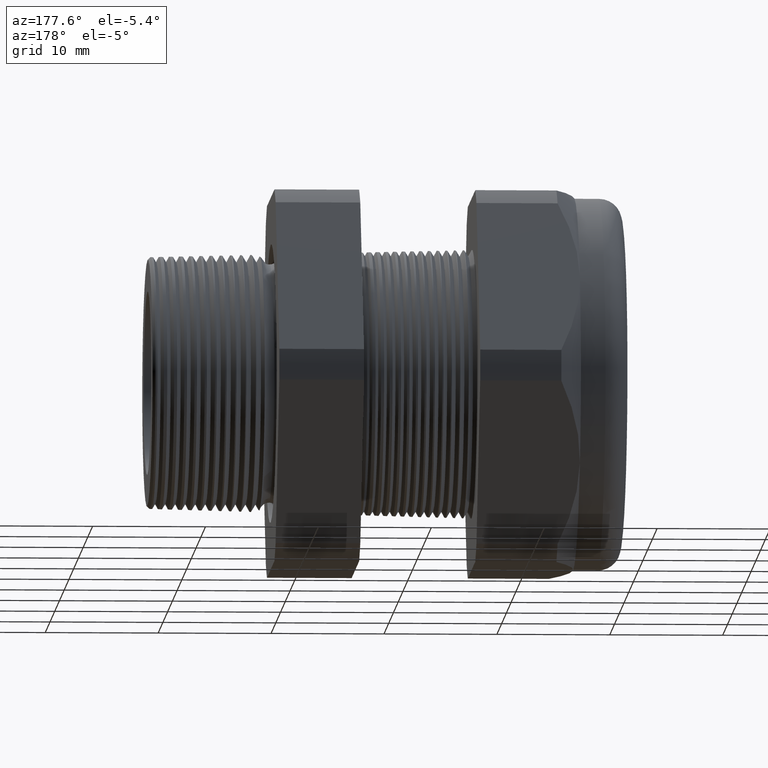
[diagram: clean part render]
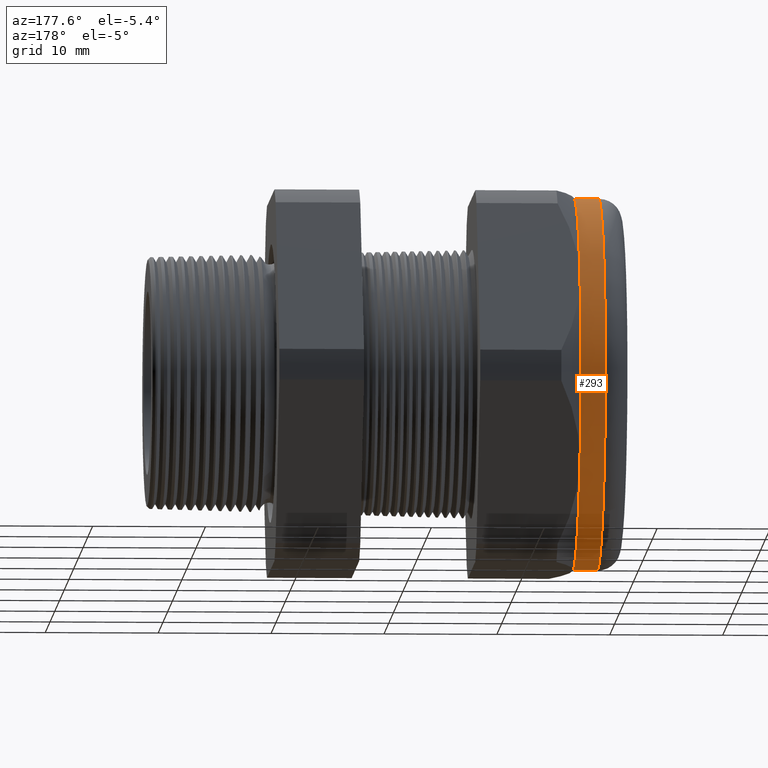
[diagram: same view with one face highlighted and labeled with its STEP entity id]
A machine part, auxiliary view. The second image highlights one B-rep face of the part: STEP entity #293.
In plain terms, the highlighted cylindrical surface (partial cylindrical patch) has radius 16.51 mm, axis along (1, 0, 0).
Its self-contained STEP definition (entity closure, byte-faithful):
#199 = VERTEX_POINT ( 'NONE', #843 ) ;
#200 = VERTEX_POINT ( 'NONE', #842 ) ;
#203 = EDGE_CURVE ( 'NONE', #200, #199, #904, .T. ) ;
#253 = VERTEX_POINT ( 'NONE', #987 ) ;
#281 = EDGE_CURVE ( 'NONE', #253, #286, #1063, .T. ) ;
#284 = EDGE_CURVE ( 'NONE', #199, #286, #1053, .T. ) ;
#285 = ORIENTED_EDGE ( 'NONE', *, *, #284, .T. ) ;
#286 = VERTEX_POINT ( 'NONE', #1049 ) ;
#287 = ORIENTED_EDGE ( 'NONE', *, *, #281, .F. ) ;
#288 = EDGE_LOOP ( 'NONE', ( #289, #285, #287, #328, #322, #311 ) ) ;
#289 = ORIENTED_EDGE ( 'NONE', *, *, #203, .T. ) ;
#293 = ADVANCED_FACE ( 'NONE', ( #1046 ), #1041, .T. ) ;
#311 = ORIENTED_EDGE ( 'NONE', *, *, #312, .F. ) ;
#312 = EDGE_CURVE ( 'NONE', #200, #314, #1079, .T. ) ;
#314 = VERTEX_POINT ( 'NONE', #1070 ) ;
#319 = EDGE_CURVE ( 'NONE', #314, #321, #1125, .T. ) ;
#321 = VERTEX_POINT ( 'NONE', #1116 ) ;
#322 = ORIENTED_EDGE ( 'NONE', *, *, #319, .F. ) ;
#327 = EDGE_CURVE ( 'NONE', #321, #253, #1111, .T. ) ;
#328 = ORIENTED_EDGE ( 'NONE', *, *, #327, .F. ) ;
#842 = CARTESIAN_POINT ( 'NONE',  ( -1.449999999999999700, 0.0000000000000000000, -0.6499999999999999100 ) ) ;
#843 = CARTESIAN_POINT ( 'NONE',  ( -1.449999999999999700, 7.960204194457794200E-017, 0.6499999999999999100 ) ) ;
#900 = DIRECTION ( 'NONE',  ( 0.0000000000000000000, 0.0000000000000000000, 1.000000000000000000 ) ) ;
#901 = DIRECTION ( 'NONE',  ( 1.000000000000000000, 0.0000000000000000000, 0.0000000000000000000 ) ) ;
#902 = CARTESIAN_POINT ( 'NONE',  ( -1.449999999999999700, 0.0000000000000000000, 0.0000000000000000000 ) ) ;
#903 = AXIS2_PLACEMENT_3D ( 'NONE', #902, #901, #900 ) ;
#904 = CIRCLE ( 'NONE', #903, 0.6499999999999999100 ) ;
#987 = CARTESIAN_POINT ( 'NONE',  ( -1.364645669291338500, 0.5629165124598856100, 0.3250000000000002300 ) ) ;
#1036 = DIRECTION ( 'NONE',  ( 0.0000000000000000000, 0.0000000000000000000, -1.000000000000000000 ) ) ;
#1037 = DIRECTION ( 'NONE',  ( 1.000000000000000000, 0.0000000000000000000, 0.0000000000000000000 ) ) ;
#1038 = CARTESIAN_POINT ( 'NONE',  ( 0.0000000000000000000, 0.0000000000000000000, 0.0000000000000000000 ) ) ;
#1039 = AXIS2_PLACEMENT_3D ( 'NONE', #1038, #1037, #1036 ) ;
#1041 = CYLINDRICAL_SURFACE ( 'NONE', #1039, 0.6499999999999999100 ) ;
#1046 = FACE_OUTER_BOUND ( 'NONE', #288, .T. ) ;
#1049 = CARTESIAN_POINT ( 'NONE',  ( -1.364645669291338500, 0.0000000000000000000, 0.6499999999999999100 ) ) ;
#1050 = DIRECTION ( 'NONE',  ( 1.000000000000000000, 0.0000000000000000000, 0.0000000000000000000 ) ) ;
#1051 = VECTOR ( 'NONE', #1050, 39.37007874015748100 ) ;
#1052 = CARTESIAN_POINT ( 'NONE',  ( 0.0000000000000000000, 7.960204194457794200E-017, 0.6499999999999999100 ) ) ;
#1053 = LINE ( 'NONE', #1052, #1051 ) ;
#1059 = DIRECTION ( 'NONE',  ( 0.0000000000000000000, 0.0000000000000000000, -1.000000000000000000 ) ) ;
#1060 = DIRECTION ( 'NONE',  ( 1.000000000000000000, 0.0000000000000000000, 0.0000000000000000000 ) ) ;
#1061 = CARTESIAN_POINT ( 'NONE',  ( -1.364645669291338200, 0.0000000000000000000, 0.0000000000000000000 ) ) ;
#1062 = AXIS2_PLACEMENT_3D ( 'NONE', #1061, #1060, #1059 ) ;
#1063 = CIRCLE ( 'NONE', #1062, 0.6499999999999999100 ) ;
#1070 = CARTESIAN_POINT ( 'NONE',  ( -1.364645669291338500, 0.0000000000000000000, -0.6500000000000001300 ) ) ;
#1071 = DIRECTION ( 'NONE',  ( 1.000000000000000000, 0.0000000000000000000, 0.0000000000000000000 ) ) ;
#1072 = VECTOR ( 'NONE', #1071, 39.37007874015748100 ) ;
#1073 = CARTESIAN_POINT ( 'NONE',  ( 0.0000000000000000000, 0.0000000000000000000, -0.6499999999999999100 ) ) ;
#1079 = LINE ( 'NONE', #1073, #1072 ) ;
#1107 = DIRECTION ( 'NONE',  ( 0.0000000000000000000, 0.0000000000000000000, -1.000000000000000000 ) ) ;
#1108 = DIRECTION ( 'NONE',  ( 1.000000000000000000, 0.0000000000000000000, 0.0000000000000000000 ) ) ;
#1109 = CARTESIAN_POINT ( 'NONE',  ( -1.364645669291338200, 0.0000000000000000000, 0.0000000000000000000 ) ) ;
#1110 = AXIS2_PLACEMENT_3D ( 'NONE', #1109, #1108, #1107 ) ;
#1111 = CIRCLE ( 'NONE', #1110, 0.6499999999999999100 ) ;
#1116 = CARTESIAN_POINT ( 'NONE',  ( -1.364645669291338500, 0.5629165124598853900, -0.3249999999999999000 ) ) ;
#1121 = DIRECTION ( 'NONE',  ( 0.0000000000000000000, 0.0000000000000000000, -1.000000000000000000 ) ) ;
#1122 = DIRECTION ( 'NONE',  ( 1.000000000000000000, 0.0000000000000000000, 0.0000000000000000000 ) ) ;
#1123 = CARTESIAN_POINT ( 'NONE',  ( -1.364645669291338200, 0.0000000000000000000, 0.0000000000000000000 ) ) ;
#1124 = AXIS2_PLACEMENT_3D ( 'NONE', #1123, #1122, #1121 ) ;
#1125 = CIRCLE ( 'NONE', #1124, 0.6499999999999999100 ) ;